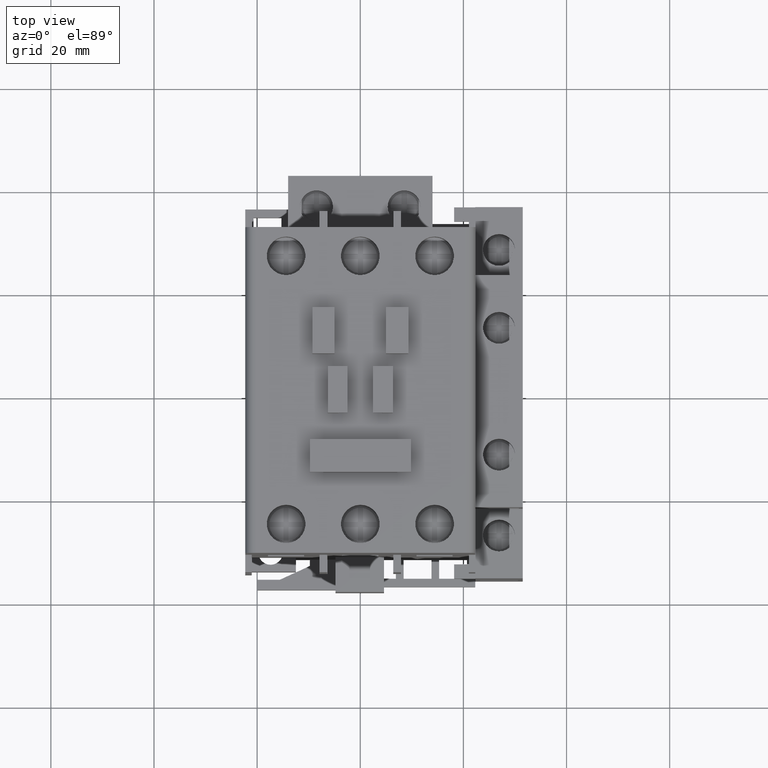
[diagram: clean part render]
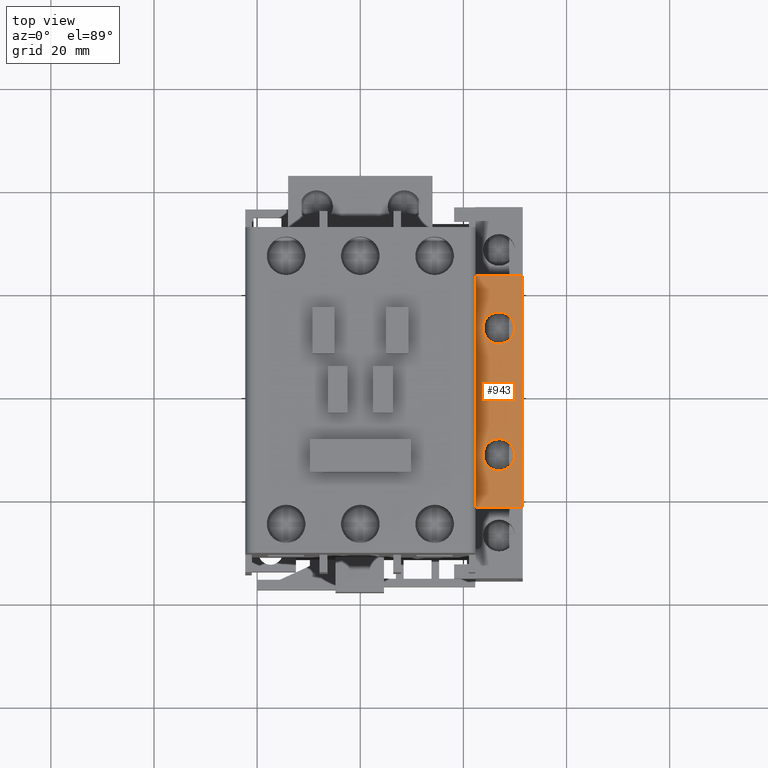
[diagram: same view with one face highlighted and labeled with its STEP entity id]
A machine part, top view. The second image highlights one B-rep face of the part: STEP entity #943.
In plain terms, the highlighted planar face has unit normal (0, 0, 1).
Its self-contained STEP definition (entity closure, byte-faithful):
#266=CIRCLE('',#9866,3.1);
#292=CIRCLE('',#9942,3.1);
#463=FACE_BOUND('',#2415,.T.);
#464=FACE_BOUND('',#2416,.T.);
#465=FACE_BOUND('',#2417,.T.);
#943=ADVANCED_FACE('',(#463,#464,#465),#1400,.T.);
#1400=PLANE('',#9954);
#2415=EDGE_LOOP('',(#4861));
#2416=EDGE_LOOP('',(#4862,#4863,#4864,#4865));
#2417=EDGE_LOOP('',(#4866));
#4861=ORIENTED_EDGE('',*,*,#7051,.F.);
#4862=ORIENTED_EDGE('',*,*,#5842,.F.);
#4863=ORIENTED_EDGE('',*,*,#7071,.F.);
#4864=ORIENTED_EDGE('',*,*,#7064,.T.);
#4865=ORIENTED_EDGE('',*,*,#6939,.T.);
#4866=ORIENTED_EDGE('',*,*,#6926,.T.);
#4982=VERTEX_POINT('',#12396);
#4983=VERTEX_POINT('',#12398);
#5721=VERTEX_POINT('',#14628);
#5730=VERTEX_POINT('',#14655);
#5807=VERTEX_POINT('',#14889);
#5816=VERTEX_POINT('',#14917);
#5842=EDGE_CURVE('',#4982,#4983,#7109,.T.);
#6926=EDGE_CURVE('',#5721,#5721,#266,.T.);
#6939=EDGE_CURVE('',#5730,#4983,#8076,.T.);
#7051=EDGE_CURVE('',#5807,#5807,#292,.T.);
#7064=EDGE_CURVE('',#5816,#5730,#8175,.T.);
#7071=EDGE_CURVE('',#5816,#4982,#8182,.T.);
#7109=LINE('',#12397,#8220);
#8076=LINE('',#14654,#9187);
#8175=LINE('',#14916,#9286);
#8182=LINE('',#14928,#9293);
#8220=VECTOR('',#9983,1.);
#9187=VECTOR('',#12036,1.);
#9286=VECTOR('',#12289,1.);
#9293=VECTOR('',#12298,1.);
#9866=AXIS2_PLACEMENT_3D('',#14627,#12012,#12013);
#9942=AXIS2_PLACEMENT_3D('',#14888,#12263,#12264);
#9954=AXIS2_PLACEMENT_3D('',#14944,#12315,#12316);
#9983=DIRECTION('',(0.,1.,0.));
#12012=DIRECTION('',(0.,-3.97579866926576E-014,-1.));
#12013=DIRECTION('',(0.,1.,-4.02903517001065E-014));
#12036=DIRECTION('',(-1.,0.,0.));
#12263=DIRECTION('',(0.,0.,1.));
#12264=DIRECTION('',(0.,-1.,0.));
#12289=DIRECTION('',(0.,1.,0.));
#12298=DIRECTION('',(-1.,0.,0.));
#12315=DIRECTION('',(0.,0.,1.));
#12316=DIRECTION('',(1.,0.,0.));
#12396=CARTESIAN_POINT('',(22.3,-22.5,77.65));
#12397=CARTESIAN_POINT('',(22.3,-22.5,77.65));
#12398=CARTESIAN_POINT('',(22.3,22.5000000000031,77.6499999999991));
#14627=CARTESIAN_POINT('',(26.9000000000001,12.3000000000031,77.6499999999995));
#14628=CARTESIAN_POINT('',(26.9000000000001,15.4000000000031,77.6499999999994));
#14654=CARTESIAN_POINT('',(31.5,22.5000000000031,77.6499999999991));
#14655=CARTESIAN_POINT('',(31.5,22.5000000000031,77.6499999999991));
#14888=CARTESIAN_POINT('',(26.9000000000001,-12.3,77.65));
#14889=CARTESIAN_POINT('',(26.9000000000001,-15.4,77.65));
#14916=CARTESIAN_POINT('',(31.5,-22.5,77.65));
#14917=CARTESIAN_POINT('',(31.5,-22.5,77.65));
#14928=CARTESIAN_POINT('',(31.5,-22.5,77.65));
#14944=CARTESIAN_POINT('',(31.5,-22.5,77.65));